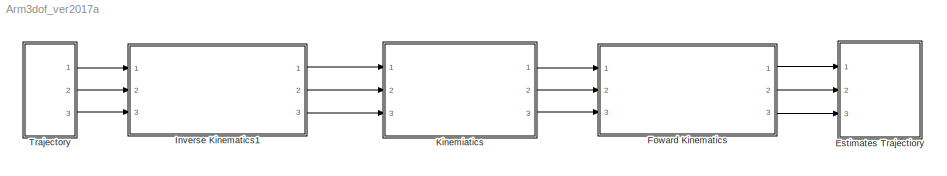
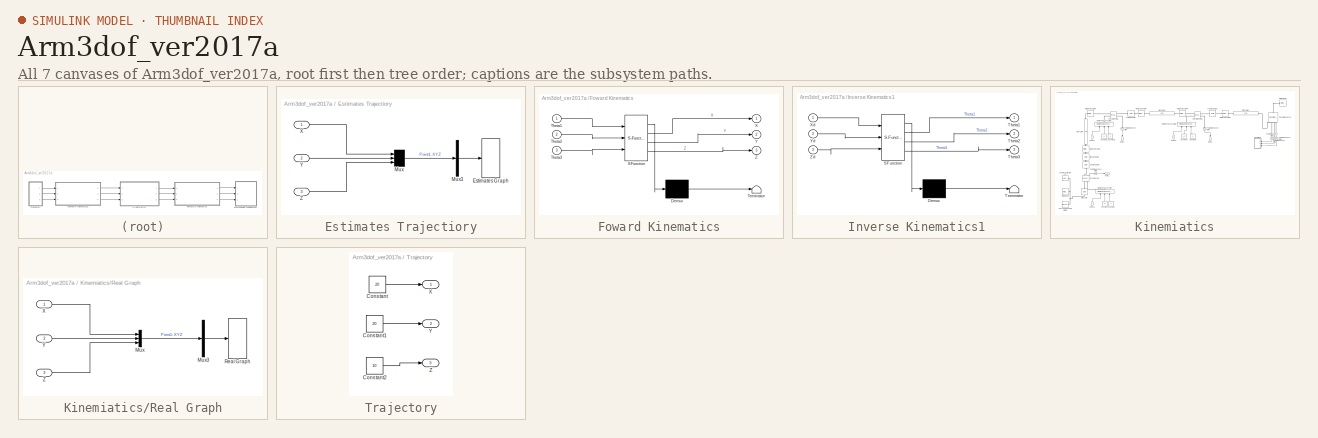
[diagram: thumbnail index - all 7 canvases of the model, root first then tree order]
MODEL Arm3dof_ver2017a
KIND model
BLOCK [SubSystem] Estimates Trajectiory
  Ports = [3]
  RequestExecContextInheritance = off
  SID = 162
BLOCK [S-Function] Estimates Trajectiory/Estimates Graph
  CopyFcn = if exist('sfun3d','file'), sfun3d([],[],[],'CopyBlock'); end
  DeleteFcn = if exist('sfun3d','file'), sfun3d([],[],[],'DeleteBlock'); end
  EnableBusSupport = off
  FunctionName = sfun3d
  LoadFcn = if exist('sfun3d','file'), sfun3d([],[],[],'LoadBlock'); end
  NameChangeFcn = if exist('sfun3d','file'), sfun3d([],[],[],'NameChange'); end
  Parameters = ax,T,np,cp,gd,ls,mk,mx,hd,tb
  Ports = [1]
  SFcnIsStateOwnerBlock = off
  SFunctionDeploymentMode = off
  SID = 166
BLOCK [Mux] Estimates Trajectiory/Mux
  DisplayOption = bar
  Inputs = 3
  Ports = [3, 1]
  SID = 167
BLOCK [Mux] Estimates Trajectiory/Mux3
  DisplayOption = bar
  Inputs = 1
  Ports = [1, 1]
  SID = 168
BLOCK [Inport] Estimates Trajectiory/X
  SID = 163
BLOCK [Inport] Estimates Trajectiory/Y
  Port = 2
  SID = 164
BLOCK [Inport] Estimates Trajectiory/Z
  Port = 3
  SID = 165
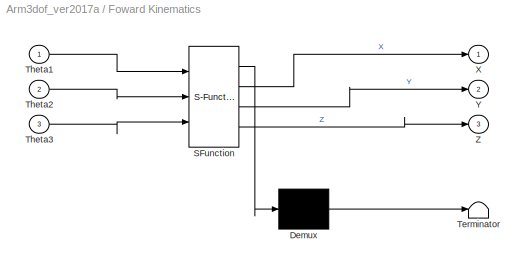
BLOCK [SubSystem] Foward Kinematics
  ErrorFcn = Stateflow.Translate.translate
  PermitHierarchicalResolution = ExplicitOnly
  Ports = [3, 3]
  RequestExecContextInheritance = off
  SFBlockType = MATLAB Function
  SID = 133
  TreatAsAtomicUnit = on
BLOCK [Demux] Foward Kinematics/ Demux 
  Outputs = 1
  Ports = [1, 1]
  SID = 133::20
BLOCK [S-Function] Foward Kinematics/ SFunction 
  EnableBusSupport = on
  FunctionName = sf_sfun
  PortCounts = [3 4]
  Ports = [3, 4]
  SFcnIsStateOwnerBlock = off
  SFunctionDeploymentMode = off
  SID = 133::19
  Tag = Stateflow S-Function Arm3dof_ver2017a 2
BLOCK [Terminator] Foward Kinematics/ Terminator 
  SID = 133::21
BLOCK [Inport] Foward Kinematics/Theta1
  SID = 133::1
BLOCK [Inport] Foward Kinematics/Theta2
  Port = 2
  SID = 133::22
BLOCK [Inport] Foward Kinematics/Theta3
  Port = 3
  SID = 133::24
BLOCK [Outport] Foward Kinematics/X
  SID = 133::23
BLOCK [Outport] Foward Kinematics/Y
  Port = 2
  SID = 133::5
BLOCK [Outport] Foward Kinematics/Z
  Port = 3
  SID = 133::25
BLOCK [SubSystem] Inverse Kinematics1
  ErrorFcn = Stateflow.Translate.translate
  PermitHierarchicalResolution = ExplicitOnly
  Ports = [3, 3]
  RequestExecContextInheritance = off
  SFBlockType = MATLAB Function
  SID = 134
  TreatAsAtomicUnit = on
BLOCK [Demux] Inverse Kinematics1/ Demux 
  Outputs = 1
  Ports = [1, 1]
  SID = 134::20
BLOCK [S-Function] Inverse Kinematics1/ SFunction 
  EnableBusSupport = on
  FunctionName = sf_sfun
  PortCounts = [3 4]
  Ports = [3, 4]
  SFcnIsStateOwnerBlock = off
  SFunctionDeploymentMode = off
  SID = 134::19
  Tag = Stateflow S-Function Arm3dof_ver2017a 1
BLOCK [Terminator] Inverse Kinematics1/ Terminator 
  SID = 134::21
BLOCK [Outport] Inverse Kinematics1/Theta1
  SID = 134::5
BLOCK [Outport] Inverse Kinematics1/Theta2
  Port = 2
  SID = 134::23
BLOCK [Outport] Inverse Kinematics1/Theta3
  Port = 3
  SID = 134::25
BLOCK [Inport] Inverse Kinematics1/Xd
  SID = 134::1
BLOCK [Inport] Inverse Kinematics1/Yd
  Port = 2
  SID = 134::22
BLOCK [Inport] Inverse Kinematics1/Zd
  Port = 3
  SID = 134::24
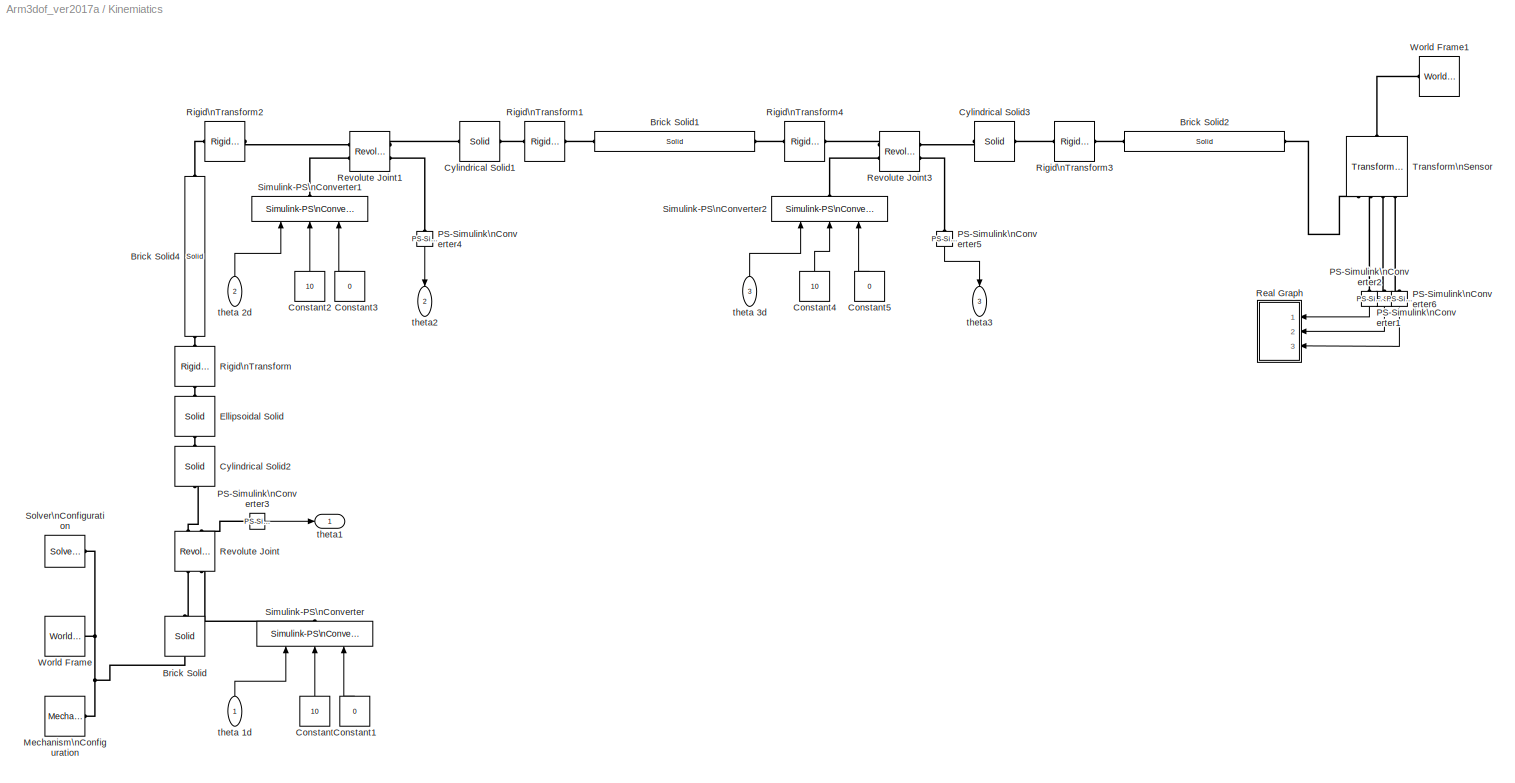
BLOCK [SubSystem] Kinemiatics
  Ports = [3, 3]
  RequestExecContextInheritance = off
  SID = 125
BLOCK [Reference] Kinemiatics/Brick Solid  REF=sm_lib/Body Elements/Solid
  BasedOnType = Density
  BrickDimensionUnits = cm
  BrickDimensions = [20 20 5]
  BrickDimensions_conf = compiletime
  CenterOfMass = [0 0 0]
  CenterOfMassUnits = m
  CenterOfMass_conf = compiletime
  Density = 1000
  DensityUnits = kg/m^3
  Density_conf = compiletime
  DoExposeReferenceFrame = on
  ExportEntireGeometry = off
  GraphicAmbientColor = [0.15 0.15 0.15 1.0]
  GraphicAmbientColor_conf = compiletime
  GraphicDiffuseColor = [0.2 0.0 0.2]
  GraphicDiffuseColor_conf = compiletime
  GraphicEmissiveColor = [0.0 0.0 0.0 1.0]
  GraphicEmissiveColor_conf = compiletime
  GraphicOpacity = 1.0
  GraphicOpacity_conf = compiletime
  GraphicShininess = 75
  GraphicShininess_conf = compiletime
  GraphicSpecularColor = [0.5 0.5 0.5 1.0]
  GraphicSpecularColor_conf = compiletime
  GraphicType = FromGeometry
  GraphicVisPropType = SimpleVisualProperties
  InertiaType = CalculateFromGeometry
  LogSimulationData = off
  MarkerShape = Sphere
  MarkerSize = 10
  MarkerSize_conf = compiletime
  Mass = 1
  MassUnits = kg
  Mass_conf = compiletime
  MomentsOfInertia = [1 1 1]
  MomentsOfInertiaUnits = kg*m^2
  MomentsOfInertia_conf = compiletime
  Ports = [0, 0, 0, 0, 0, 1, 1]
  ProductsOfInertia = [0 0 0]
  ProductsOfInertiaUnits = kg*m^2
  ProductsOfInertia_conf = compiletime
  SID = 44
  SerializedFrames = <Frames><Frame><Id>Frame1</Id><Value><Name>F</Name><Origin><Source>GeometricFeature</Source><FeatureName>+z surface</FeatureName></Origin><PrimaryAxis><DefinedDirection>+Z</DefinedDirection><Source>ReferenceFrame</Source><SourceDirection>+Z</SourceDirection><FeatureName></FeatureName></PrimaryAxis><SecondaryAxis><DefinedDirection>+X</DefinedDirection><Source>ReferenceFrame</Source><SourceDirection...<+89ch>
  SourceBlock = sm_lib/Body Elements/Solid
  SourceProductBaseCode = MS
  SourceType = Brick Solid
BLOCK [Reference] Kinemiatics/Brick Solid1  REF=sm_lib/Body Elements/Solid
  BasedOnType = Density
  BrickDimensionUnits = cm
  BrickDimensions = [3 1 15]
  BrickDimensions_conf = compiletime
  CenterOfMass = [0 0 0]
  CenterOfMassUnits = m
  CenterOfMass_conf = compiletime
  Density = 1000
  DensityUnits = kg/m^3
  Density_conf = compiletime
  DoExposeReferenceFrame = off
  ExportEntireGeometry = off
  GraphicAmbientColor = [0.15 0.15 0.15 1.0]
  GraphicAmbientColor_conf = compiletime
  GraphicDiffuseColor = [0.8 0.2 1.0]
  GraphicDiffuseColor_conf = compiletime
  GraphicEmissiveColor = [0.0 0.0 0.0 1.0]
  GraphicEmissiveColor_conf = compiletime
  GraphicOpacity = 1.0
  GraphicOpacity_conf = compiletime
  GraphicShininess = 75
  GraphicShininess_conf = compiletime
  GraphicSpecularColor = [0.5 0.5 0.5 1.0]
  GraphicSpecularColor_conf = compiletime
  GraphicType = FromGeometry
  GraphicVisPropType = SimpleVisualProperties
  InertiaType = CalculateFromGeometry
  LogSimulationData = off
  MarkerShape = Sphere
  MarkerSize = 10
  MarkerSize_conf = compiletime
  Mass = 1
  MassUnits = kg
  Mass_conf = compiletime
  MomentsOfInertia = [1 1 1]
  MomentsOfInertiaUnits = kg*m^2
  MomentsOfInertia_conf = compiletime
  Ports = [0, 0, 0, 0, 0, 1, 1]
  ProductsOfInertia = [0 0 0]
  ProductsOfInertiaUnits = kg*m^2
  ProductsOfInertia_conf = compiletime
  SID = 87
  SerializedFrames = <Frames><Frame><Id>Frame1</Id><Value><Name>Bot</Name><Origin><Source>GeometricFeature</Source><FeatureName>-z surface</FeatureName></Origin><PrimaryAxis><DefinedDirection>+Z</DefinedDirection><Source>ReferenceFrame</Source><SourceDirection>+Z</SourceDirection><FeatureName></FeatureName></PrimaryAxis><SecondaryAxis><DefinedDirection>+X</DefinedDirection><Source>ReferenceFrame</Source><SourceDirecti...<+565ch>  <repeated x3 — deduplicated; at blocks: Brick Solid1, Brick Solid2, Brick Solid4>
  SourceBlock = sm_lib/Body Elements/Solid
  SourceProductBaseCode = MS
  SourceType = Brick Solid
BLOCK [Reference] Kinemiatics/Brick Solid2  REF=sm_lib/Body Elements/Solid
  BasedOnType = Density
  BrickDimensionUnits = cm
  BrickDimensions = [3 1 14.5]
  BrickDimensions_conf = compiletime
  CenterOfMass = [0 0 0]
  CenterOfMassUnits = m
  CenterOfMass_conf = compiletime
  Density = 1000
  DensityUnits = kg/m^3
  Density_conf = compiletime
  DoExposeReferenceFrame = off
  ExportEntireGeometry = off
  GraphicAmbientColor = [0.15 0.15 0.15 1.0]
  GraphicAmbientColor_conf = compiletime
  GraphicDiffuseColor = [0.0 0.0 0.8]
  GraphicDiffuseColor_conf = compiletime
  GraphicEmissiveColor = [0.0 0.0 0.0 1.0]
  GraphicEmissiveColor_conf = compiletime
  GraphicOpacity = 1.0
  GraphicOpacity_conf = compiletime
  GraphicShininess = 75
  GraphicShininess_conf = compiletime
  GraphicSpecularColor = [0.5 0.5 0.5 1.0]
  GraphicSpecularColor_conf = compiletime
  GraphicType = FromGeometry
  GraphicVisPropType = SimpleVisualProperties
  InertiaType = CalculateFromGeometry
  LogSimulationData = off
  MarkerShape = Sphere
  MarkerSize = 10
  MarkerSize_conf = compiletime
  Mass = 1
  MassUnits = kg
  Mass_conf = compiletime
  MomentsOfInertia = [1 1 1]
  MomentsOfInertiaUnits = kg*m^2
  MomentsOfInertia_conf = compiletime
  Ports = [0, 0, 0, 0, 0, 1, 1]
  ProductsOfInertia = [0 0 0]
  ProductsOfInertiaUnits = kg*m^2
  ProductsOfInertia_conf = compiletime
  SID = 95
  SourceBlock = sm_lib/Body Elements/Solid
  SourceProductBaseCode = MS
  SourceType = Brick Solid
BLOCK [Reference] Kinemiatics/Brick Solid4  REF=sm_lib/Body Elements/Solid
  BasedOnType = Density
  BrickDimensionUnits = cm
  BrickDimensions = [3 1 15.96997]
  BrickDimensions_conf = compiletime
  CenterOfMass = [0 0 0]
  CenterOfMassUnits = m
  CenterOfMass_conf = compiletime
  Density = 1000
  DensityUnits = kg/m^3
  Density_conf = compiletime
  DoExposeReferenceFrame = off
  ExportEntireGeometry = off
  GraphicAmbientColor = [0.15 0.15 0.15 1.0]
  GraphicAmbientColor_conf = compiletime
  GraphicDiffuseColor = [0.0 1.0 1.0]
  GraphicDiffuseColor_conf = compiletime
  GraphicEmissiveColor = [0.0 0.0 0.0 1.0]
  GraphicEmissiveColor_conf = compiletime
  GraphicOpacity = 1.0
  GraphicOpacity_conf = compiletime
  GraphicShininess = 75
  GraphicShininess_conf = compiletime
  GraphicSpecularColor = [0.5 0.5 0.5 1.0]
  GraphicSpecularColor_conf = compiletime
  GraphicType = FromGeometry
  GraphicVisPropType = SimpleVisualProperties
  InertiaType = CalculateFromGeometry
  LogSimulationData = off
  MarkerShape = Sphere
  MarkerSize = 10
  MarkerSize_conf = compiletime
  Mass = 1
  MassUnits = kg
  Mass_conf = compiletime
  MomentsOfInertia = [1 1 1]
  MomentsOfInertiaUnits = kg*m^2
  MomentsOfInertia_conf = compiletime
  Ports = [0, 0, 0, 0, 0, 1, 1]
  ProductsOfInertia = [0 0 0]
  ProductsOfInertiaUnits = kg*m^2
  ProductsOfInertia_conf = compiletime
  SID = 61
  SourceBlock = sm_lib/Body Elements/Solid
  SourceProductBaseCode = MS
  SourceType = Brick Solid
BLOCK [Constant] Kinemiatics/Constant
  SID = 108
  Value = 10
BLOCK [Constant] Kinemiatics/Constant1
  SID = 109
  Value = 0
BLOCK [Constant] Kinemiatics/Constant2
  SID = 114
  Value = 10
BLOCK [Constant] Kinemiatics/Constant3
  SID = 115
  Value = 0
BLOCK [Constant] Kinemiatics/Constant4
  SID = 120
  Value = 10
BLOCK [Constant] Kinemiatics/Constant5
  SID = 121
  Value = 0
BLOCK [Reference] Kinemiatics/Cylindrical Solid1  REF=sm_lib/Body Elements/Solid
  BasedOnType = Density
  CenterOfMass = [0 0 0]
  CenterOfMassUnits = m
  CenterOfMass_conf = compiletime
  CylinderLength = 1
  CylinderLengthUnits = cm
  CylinderLength_conf = compiletime
  CylinderRadius = 1
  CylinderRadiusUnits = cm
  CylinderRadius_conf = compiletime
  Density = 1000
  DensityUnits = kg/m^3
  Density_conf = compiletime
  DoExposeReferenceFrame = off
  ExportEntireGeometry = off
  GraphicAmbientColor = [0.15 0.15 0.15 1.0]
  GraphicAmbientColor_conf = compiletime
  GraphicDiffuseColor = [0.5 0.5 0.5]
  GraphicDiffuseColor_conf = compiletime
  GraphicEmissiveColor = [0.0 0.0 0.0 1.0]
  GraphicEmissiveColor_conf = compiletime
  GraphicOpacity = 1.0
  GraphicOpacity_conf = compiletime
  GraphicShininess = 75
  GraphicShininess_conf = compiletime
  GraphicSpecularColor = [0.5 0.5 0.5 1.0]
  GraphicSpecularColor_conf = compiletime
  GraphicType = FromGeometry
  GraphicVisPropType = SimpleVisualProperties
  InertiaType = CalculateFromGeometry
  LogSimulationData = off
  MarkerShape = Sphere
  MarkerSize = 10
  MarkerSize_conf = compiletime
  Mass = 1
  MassUnits = kg
  Mass_conf = compiletime
  MomentsOfInertia = [1 1 1]
  MomentsOfInertiaUnits = kg*m^2
  MomentsOfInertia_conf = compiletime
  Ports = [0, 0, 0, 0, 0, 1, 1]
  ProductsOfInertia = [0 0 0]
  ProductsOfInertiaUnits = kg*m^2
  ProductsOfInertia_conf = compiletime
  SID = 90
  SerializedFrames = <Frames><Frame><Id>Frame1</Id><Value><Name>Front</Name><Origin><Source>GeometricFeature</Source><FeatureName>bottom surface</FeatureName></Origin><PrimaryAxis><DefinedDirection>+Z</DefinedDirection><Source>ReferenceFrame</Source><SourceDirection>+Z</SourceDirection><FeatureName></FeatureName></PrimaryAxis><SecondaryAxis><DefinedDirection>+X</DefinedDirection><Source>ReferenceFrame</Source><SourceD...<+573ch>
  SourceBlock = sm_lib/Body Elements/Solid
  SourceProductBaseCode = MS
  SourceType = Cylindrical Solid
BLOCK [Reference] Kinemiatics/Cylindrical Solid2  REF=sm_lib/Body Elements/Solid
  BasedOnType = Density
  CenterOfMass = [0 0 0]
  CenterOfMassUnits = m
  CenterOfMass_conf = compiletime
  CylinderLength = 0.5
  CylinderLengthUnits = cm
  CylinderLength_conf = compiletime
  CylinderRadius = 1.5
  CylinderRadiusUnits = cm
  CylinderRadius_conf = compiletime
  Density = 1000
  DensityUnits = kg/m^3
  Density_conf = compiletime
  DoExposeReferenceFrame = off
  ExportEntireGeometry = off
  GraphicAmbientColor = [0.15 0.15 0.15 1.0]
  GraphicAmbientColor_conf = compiletime
  GraphicDiffuseColor = [0.5 0.5 0.5]
  GraphicDiffuseColor_conf = compiletime
  GraphicEmissiveColor = [0.0 0.0 0.0 1.0]
  GraphicEmissiveColor_conf = compiletime
  GraphicOpacity = 1.0
  GraphicOpacity_conf = compiletime
  GraphicShininess = 75
  GraphicShininess_conf = compiletime
  GraphicSpecularColor = [0.5 0.5 0.5 1.0]
  GraphicSpecularColor_conf = compiletime
  GraphicType = FromGeometry
  GraphicVisPropType = SimpleVisualProperties
  InertiaType = CalculateFromGeometry
  LogSimulationData = off
  MarkerShape = Sphere
  MarkerSize = 10
  MarkerSize_conf = compiletime
  Mass = 1
  MassUnits = kg
  Mass_conf = compiletime
  MomentsOfInertia = [1 1 1]
  MomentsOfInertiaUnits = kg*m^2
  MomentsOfInertia_conf = compiletime
  Ports = [0, 0, 0, 0, 0, 1, 1]
  ProductsOfInertia = [0 0 0]
  ProductsOfInertiaUnits = kg*m^2
  ProductsOfInertia_conf = compiletime
  SID = 63
  SerializedFrames = <Frames><Frame><Id>Frame1</Id><Value><Name>Bot</Name><Origin><Source>GeometricFeature</Source><FeatureName>bottom surface</FeatureName></Origin><PrimaryAxis><DefinedDirection>+Z</DefinedDirection><Source>ReferenceFrame</Source><SourceDirection>+Z</SourceDirection><FeatureName></FeatureName></PrimaryAxis><SecondaryAxis><DefinedDirection>+X</DefinedDirection><Source>ReferenceFrame</Source><SourceDir...<+570ch>
  SourceBlock = sm_lib/Body Elements/Solid
  SourceProductBaseCode = MS
  SourceType = Cylindrical Solid
BLOCK [Reference] Kinemiatics/Cylindrical Solid3  REF=sm_lib/Body Elements/Solid
  BasedOnType = Density
  CenterOfMass = [0 0 0]
  CenterOfMassUnits = m
  CenterOfMass_conf = compiletime
  CylinderLength = 1
  CylinderLengthUnits = cm
  CylinderLength_conf = compiletime
  CylinderRadius = 1
  CylinderRadiusUnits = cm
  CylinderRadius_conf = compiletime
  Density = 1000
  DensityUnits = kg/m^3
  Density_conf = compiletime
  DoExposeReferenceFrame = off
  ExportEntireGeometry = off
  GraphicAmbientColor = [0.15 0.15 0.15 1.0]
  GraphicAmbientColor_conf = compiletime
  GraphicDiffuseColor = [0.5 0.5 0.5]
  GraphicDiffuseColor_conf = compiletime
  GraphicEmissiveColor = [0.0 0.0 0.0 1.0]
  GraphicEmissiveColor_conf = compiletime
  GraphicOpacity = 1.0
  GraphicOpacity_conf = compiletime
  GraphicShininess = 75
  GraphicShininess_conf = compiletime
  GraphicSpecularColor = [0.5 0.5 0.5 1.0]
  GraphicSpecularColor_conf = compiletime
  GraphicType = FromGeometry
  GraphicVisPropType = SimpleVisualProperties
  InertiaType = CalculateFromGeometry
  LogSimulationData = off
  MarkerShape = Sphere
  MarkerSize = 10
  MarkerSize_conf = compiletime
  Mass = 1
  MassUnits = kg
  Mass_conf = compiletime
  MomentsOfInertia = [1 1 1]
  MomentsOfInertiaUnits = kg*m^2
  MomentsOfInertia_conf = compiletime
  Ports = [0, 0, 0, 0, 0, 1, 1]
  ProductsOfInertia = [0 0 0]
  ProductsOfInertiaUnits = kg*m^2
  ProductsOfInertia_conf = compiletime
  SID = 96
  SerializedFrames = <Frames><Frame><Id>Frame1</Id><Value><Name>Front</Name><Origin><Source>GeometricFeature</Source><FeatureName>bottom surface</FeatureName></Origin><PrimaryAxis><DefinedDirection>+Z</DefinedDirection><Source>ReferenceFrame</Source><SourceDirection>+Z</SourceDirection><FeatureName></FeatureName></PrimaryAxis><SecondaryAxis><DefinedDirection>+X</DefinedDirection><Source>ReferenceFrame</Source><SourceD...<+573ch>
  SourceBlock = sm_lib/Body Elements/Solid
  SourceProductBaseCode = MS
  SourceType = Cylindrical Solid
BLOCK [Reference] Kinemiatics/Ellipsoidal Solid  REF=sm_lib/Body Elements/Solid
  BasedOnType = Density
  CenterOfMass = [0 0 0]
  CenterOfMassUnits = m
  CenterOfMass_conf = compiletime
  Density = 1000
  DensityUnits = kg/m^3
  Density_conf = compiletime
  DoExposeReferenceFrame = on
  EllipsoidRadii = [1 1 1]
  EllipsoidRadiiUnits = cm
  EllipsoidRadii_conf = compiletime
  ExportEntireGeometry = off
  GraphicAmbientColor = [0.15 0.15 0.15 1.0]
  GraphicAmbientColor_conf = compiletime
  GraphicDiffuseColor = [0.5 0.5 0.5]
  GraphicDiffuseColor_conf = compiletime
  GraphicEmissiveColor = [0.0 0.0 0.0 1.0]
  GraphicEmissiveColor_conf = compiletime
  GraphicOpacity = 1.0
  GraphicOpacity_conf = compiletime
  GraphicShininess = 75
  GraphicShininess_conf = compiletime
  GraphicSpecularColor = [0.5 0.5 0.5 1.0]
  GraphicSpecularColor_conf = compiletime
  GraphicType = FromGeometry
  GraphicVisPropType = SimpleVisualProperties
  InertiaType = CalculateFromGeometry
  LogSimulationData = off
  MarkerShape = Sphere
  MarkerSize = 10
  MarkerSize_conf = compiletime
  Mass = 1
  MassUnits = kg
  Mass_conf = compiletime
  MomentsOfInertia = [1 1 1]
  MomentsOfInertiaUnits = kg*m^2
  MomentsOfInertia_conf = compiletime
  Ports = [0, 0, 0, 0, 0, 1, 1]
  ProductsOfInertia = [0 0 0]
  ProductsOfInertiaUnits = kg*m^2
  ProductsOfInertia_conf = compiletime
  SID = 79
  SerializedFrames = <Frames><Frame><Id>Frame1</Id><Value><Name>Bot</Name><Origin><Source>GeometricFeature</Source><FeatureName>-z point</FeatureName></Origin><PrimaryAxis><DefinedDirection>+Z</DefinedDirection><Source>ReferenceFrame</Source><SourceDirection>+Z</SourceDirection><FeatureName></FeatureName></PrimaryAxis><SecondaryAxis><DefinedDirection>+X</DefinedDirection><Source>ReferenceFrame</Source><SourceDirection...<+89ch>
  SourceBlock = sm_lib/Body Elements/Solid
  SourceProductBaseCode = MS
  SourceType = Ellipsoidal Solid
BLOCK [Reference] Kinemiatics/Mechanism\nConfiguration  REF=sm_lib/Utilities/Mechanism\nConfiguration
  GravityUnits = m/s^2
  GravityVector = [0  0 -9.80665]
  GravityVectorUnits = m/s^2
  GravityVector_conf = compiletime
  JointModeTransitionNonlinearIterations = 2
  LinearizationDelta = 0.001
  LogSimulationData = off
  Ports = [0, 0, 0, 0, 0, 0, 1]
  SID = 50
  SourceBlock = sm_lib/Utilities/Mechanism\nConfiguration
  SourceProductBaseCode = MS
  SourceType = Mechanism\nConfiguration
  UniformGravity = Constant
BLOCK [Reference] Kinemiatics/PS-Simulink\nConverter1  REF=nesl_utility/PS-Simulink\nConverter
  AffineConversion = off
  Frequencies = []
  LeftPortType = input
  PhysicalDomain = network_engine_domain
  Ports = [0, 1, 0, 0, 0, 1]
  PseudoPeriodic = off
  RTWMemSecDataConstants = Inherit from model
  RTWMemSecDataInternal = Inherit from model
  RTWMemSecDataParameters = Inherit from model
  RTWMemSecFuncExecute = Inherit from model
  RTWMemSecFuncInitTerm = Inherit from model
  RightPortType = output
  SID = 102
  SourceBlock = nesl_utility/PS-Simulink\nConverter
  SourceProductBaseCode = PW,SS
  SourceType = PS-Simulink\nConverter
  SubClassName = ps_output
  Unit = inherit
BLOCK [Reference] Kinemiatics/PS-Simulink\nConverter2  REF=nesl_utility/PS-Simulink\nConverter
  AffineConversion = off
  Frequencies = []
  LeftPortType = input
  PhysicalDomain = network_engine_domain
  Ports = [0, 1, 0, 0, 0, 1]
  PseudoPeriodic = off
  RTWMemSecDataConstants = Inherit from model
  RTWMemSecDataInternal = Inherit from model
  RTWMemSecDataParameters = Inherit from model
  RTWMemSecFuncExecute = Inherit from model
  RTWMemSecFuncInitTerm = Inherit from model
  RightPortType = output
  SID = 106
  SourceBlock = nesl_utility/PS-Simulink\nConverter
  SourceProductBaseCode = PW,SS
  SourceType = PS-Simulink\nConverter
  SubClassName = ps_output
  Unit = inherit
BLOCK [Reference] Kinemiatics/PS-Simulink\nConverter3  REF=nesl_utility/PS-Simulink\nConverter
  AffineConversion = off
  Frequencies = []
  LeftPortType = input
  PhysicalDomain = network_engine_domain
  Ports = [0, 1, 0, 0, 0, 1]
  PseudoPeriodic = off
  RTWMemSecDataConstants = Inherit from model
  RTWMemSecDataInternal = Inherit from model
  RTWMemSecDataParameters = Inherit from model
  RTWMemSecFuncExecute = Inherit from model
  RTWMemSecFuncInitTerm = Inherit from model
  RightPortType = output
  SID = 110
  SourceBlock = nesl_utility/PS-Simulink\nConverter
  SourceProductBaseCode = PW,SS
  SourceType = PS-Simulink\nConverter
  SubClassName = ps_output
  Unit = inherit
BLOCK [Reference] Kinemiatics/PS-Simulink\nConverter4  REF=nesl_utility/PS-Simulink\nConverter
  AffineConversion = off
  Frequencies = []
  LeftPortType = input
  PhysicalDomain = network_engine_domain
  Ports = [0, 1, 0, 0, 0, 1]
  PseudoPeriodic = off
  RTWMemSecDataConstants = Inherit from model
  RTWMemSecDataInternal = Inherit from model
  RTWMemSecDataParameters = Inherit from model
  RTWMemSecFuncExecute = Inherit from model
  RTWMemSecFuncInitTerm = Inherit from model
  RightPortType = output
  SID = 116
  SourceBlock = nesl_utility/PS-Simulink\nConverter
  SourceProductBaseCode = PW,SS
  SourceType = PS-Simulink\nConverter
  SubClassName = ps_output
  Unit = inherit
BLOCK [Reference] Kinemiatics/PS-Simulink\nConverter5  REF=nesl_utility/PS-Simulink\nConverter
  AffineConversion = off
  Frequencies = []
  LeftPortType = input
  PhysicalDomain = network_engine_domain
  Ports = [0, 1, 0, 0, 0, 1]
  PseudoPeriodic = off
  RTWMemSecDataConstants = Inherit from model
  RTWMemSecDataInternal = Inherit from model
  RTWMemSecDataParameters = Inherit from model
  RTWMemSecFuncExecute = Inherit from model
  RTWMemSecFuncInitTerm = Inherit from model
  RightPortType = output
  SID = 122
  SourceBlock = nesl_utility/PS-Simulink\nConverter
  SourceProductBaseCode = PW,SS
  SourceType = PS-Simulink\nConverter
  SubClassName = ps_output
  Unit = inherit
BLOCK [Reference] Kinemiatics/PS-Simulink\nConverter6  REF=nesl_utility/PS-Simulink\nConverter
  AffineConversion = off
  Frequencies = []
  LeftPortType = input
  PhysicalDomain = network_engine_domain
  Ports = [0, 1, 0, 0, 0, 1]
  PseudoPeriodic = off
  RTWMemSecDataConstants = Inherit from model
  RTWMemSecDataInternal = Inherit from model
  RTWMemSecDataParameters = Inherit from model
  RTWMemSecFuncExecute = Inherit from model
  RTWMemSecFuncInitTerm = Inherit from model
  RightPortType = output
  SID = 161
  SourceBlock = nesl_utility/PS-Simulink\nConverter
  SourceProductBaseCode = PW,SS
  SourceType = PS-Simulink\nConverter
  SubClassName = ps_output
  Unit = inherit
BLOCK [SubSystem] Kinemiatics/Real Graph
  Ports = [3]
  RequestExecContextInheritance = off
  SID = 157
BLOCK [Mux] Kinemiatics/Real Graph/Mux
  DisplayOption = bar
  Inputs = 3
  Ports = [3, 1]
  SID = 145
BLOCK [Mux] Kinemiatics/Real Graph/Mux3
  DisplayOption = bar
  Inputs = 1
  Ports = [1, 1]
  SID = 147
BLOCK [S-Function] Kinemiatics/Real Graph/Real Graph
  CopyFcn = if exist('sfun3d','file'), sfun3d([],[],[],'CopyBlock'); end
  DeleteFcn = if exist('sfun3d','file'), sfun3d([],[],[],'DeleteBlock'); end
  EnableBusSupport = off
  FunctionName = sfun3d
  LoadFcn = if exist('sfun3d','file'), sfun3d([],[],[],'LoadBlock'); end
  NameChangeFcn = if exist('sfun3d','file'), sfun3d([],[],[],'NameChange'); end
  Parameters = ax,T,np,cp,gd,ls,mk,mx,hd,tb
  Ports = [1]
  SFcnIsStateOwnerBlock = off
  SFunctionDeploymentMode = off
  SID = 144
BLOCK [Inport] Kinemiatics/Real Graph/X
  SID = 158
BLOCK [Inport] Kinemiatics/Real Graph/Y
  Port = 2
  SID = 159
BLOCK [Inport] Kinemiatics/Real Graph/Z
  Port = 3
  SID = 160
BLOCK [Reference] Kinemiatics/Revolute Joint  REF=sm_lib/Joints/Revolute Joint
  CompositeWrenchDir = FollowerOnBase
  CompositeWrenchFrame = BaseFrame
  DampingCoefficient = 0
  DampingCoefficientUnits = N*m/(deg/s)
  DampingCoefficient_conf = compiletime
  EquilibriumPosition = 0
  EquilibriumPositionUnits = deg
  EquilibriumPosition_conf = compiletime
  JointMode = Normal
  LogSimulationData = off
  LowerLimitBound = -90
  LowerLimitBoundUnits = deg
  LowerLimitBound_conf = compiletime
  LowerLimitDamping = 10
  LowerLimitDampingUnits = N*m/(deg/s)
  LowerLimitDamping_conf = compiletime
  LowerLimitSpecify = off
  LowerLimitStiffness = 1e4
  LowerLimitStiffnessUnits = N*m/deg
  LowerLimitStiffness_conf = compiletime
  LowerLimitTransitionRegionWidth = 0.1
  LowerLimitTransitionRegionWidthUnits = deg
  LowerLimitTransitionRegionWidth_conf = compiletime
  MotionActuationMode = InputMotion
  Ports = [0, 0, 0, 0, 0, 2, 2]
  PositionTargetPriority = High
  PositionTargetSpecify = off
  PositionTargetValue = 0
  PositionTargetValueUnits = deg
  PositionTargetValue_conf = compiletime
  SID = 86
  SenseAcceleration = off
  SenseConstraintForce = off
  SenseConstraintForceX = off
  SenseConstraintForceY = off
  SenseConstraintForceZ = off
  SenseConstraintTorque = off
  SenseConstraintTorqueX = off
  SenseConstraintTorqueY = off
  SenseConstraintTorqueZ = off
  SenseLowerLimitTorqueForce = off
  SensePosition = on
  SenseTorqueForce = off
  SenseTotalForce = off
  SenseTotalForceX = off
  SenseTotalForceY = off
  SenseTotalForceZ = off
  SenseTotalTorque = off
  SenseTotalTorqueX = off
  SenseTotalTorqueY = off
  SenseTotalTorqueZ = off
  SenseUpperLimitTorqueForce = off
  SenseVelocity = off
  SourceBlock = sm_lib/Joints/Revolute Joint
  SourceProductBaseCode = MS
  SourceType = Revolute Joint
  SpringStiffness = 0
  SpringStiffnessUnits = N*m/deg
  SpringStiffness_conf = compiletime
  TorqueActuationMode = ComputedTorque
  UpperLimitBound = 90
  UpperLimitBoundUnits = deg
  UpperLimitBound_conf = compiletime
  UpperLimitDamping = 10
  UpperLimitDampingUnits = N*m/(deg/s)
  UpperLimitDamping_conf = compiletime
  UpperLimitSpecify = off
  UpperLimitStiffness = 1e4
  UpperLimitStiffnessUnits = N*m/deg
  UpperLimitStiffness_conf = compiletime
  UpperLimitTransitionRegionWidth = 0.1
  UpperLimitTransitionRegionWidthUnits = deg
  UpperLimitTransitionRegionWidth_conf = compiletime
  VelocityTargetPriority = High
  VelocityTargetSpecify = off
  VelocityTargetValue = 0
  VelocityTargetValueUnits = deg/s
  VelocityTargetValue_conf = compiletime
BLOCK [Reference] Kinemiatics/Revolute Joint1  REF=sm_lib/Joints/Revolute Joint
  CompositeWrenchDir = FollowerOnBase
  CompositeWrenchFrame = BaseFrame
  DampingCoefficient = 0
  DampingCoefficientUnits = N*m/(deg/s)
  DampingCoefficient_conf = compiletime
  EquilibriumPosition = 0
  EquilibriumPositionUnits = deg
  EquilibriumPosition_conf = compiletime
  JointMode = Normal
  LogSimulationData = off
  LowerLimitBound = -90
  LowerLimitBoundUnits = deg
  LowerLimitBound_conf = compiletime
  LowerLimitDamping = 10
  LowerLimitDampingUnits = N*m/(deg/s)
  LowerLimitDamping_conf = compiletime
  LowerLimitSpecify = off
  LowerLimitStiffness = 1e4
  LowerLimitStiffnessUnits = N*m/deg
  LowerLimitStiffness_conf = compiletime
  LowerLimitTransitionRegionWidth = 0.1
  LowerLimitTransitionRegionWidthUnits = deg
  LowerLimitTransitionRegionWidth_conf = compiletime
  MotionActuationMode = InputMotion
  Ports = [0, 0, 0, 0, 0, 2, 2]
  PositionTargetPriority = High
  PositionTargetSpecify = off
  PositionTargetValue = 0
  PositionTargetValueUnits = deg
  PositionTargetValue_conf = compiletime
  SID = 99
  SenseAcceleration = off
  SenseConstraintForce = off
  SenseConstraintForceX = off
  SenseConstraintForceY = off
  SenseConstraintForceZ = off
  SenseConstraintTorque = off
  SenseConstraintTorqueX = off
  SenseConstraintTorqueY = off
  SenseConstraintTorqueZ = off
  SenseLowerLimitTorqueForce = off
  SensePosition = on
  SenseTorqueForce = off
  SenseTotalForce = off
  SenseTotalForceX = off
  SenseTotalForceY = off
  SenseTotalForceZ = off
  SenseTotalTorque = off
  SenseTotalTorqueX = off
  SenseTotalTorqueY = off
  SenseTotalTorqueZ = off
  SenseUpperLimitTorqueForce = off
  SenseVelocity = off
  SourceBlock = sm_lib/Joints/Revolute Joint
  SourceProductBaseCode = MS
  SourceType = Revolute Joint
  SpringStiffness = 0
  SpringStiffnessUnits = N*m/deg
  SpringStiffness_conf = compiletime
  TorqueActuationMode = ComputedTorque
  UpperLimitBound = 90
  UpperLimitBoundUnits = deg
  UpperLimitBound_conf = compiletime
  UpperLimitDamping = 10
  UpperLimitDampingUnits = N*m/(deg/s)
  UpperLimitDamping_conf = compiletime
  UpperLimitSpecify = off
  UpperLimitStiffness = 1e4
  UpperLimitStiffnessUnits = N*m/deg
  UpperLimitStiffness_conf = compiletime
  UpperLimitTransitionRegionWidth = 0.1
  UpperLimitTransitionRegionWidthUnits = deg
  UpperLimitTransitionRegionWidth_conf = compiletime
  VelocityTargetPriority = High
  VelocityTargetSpecify = off
  VelocityTargetValue = 0
  VelocityTargetValueUnits = deg/s
  VelocityTargetValue_conf = compiletime
BLOCK [Reference] Kinemiatics/Revolute Joint3  REF=sm_lib/Joints/Revolute Joint
  CompositeWrenchDir = FollowerOnBase
  CompositeWrenchFrame = BaseFrame
  DampingCoefficient = 0
  DampingCoefficientUnits = N*m/(deg/s)
  DampingCoefficient_conf = compiletime
  EquilibriumPosition = 0
  EquilibriumPositionUnits = deg
  EquilibriumPosition_conf = compiletime
  JointMode = Normal
  LogSimulationData = off
  LowerLimitBound = -90
  LowerLimitBoundUnits = deg
  LowerLimitBound_conf = compiletime
  LowerLimitDamping = 10
  LowerLimitDampingUnits = N*m/(deg/s)
  LowerLimitDamping_conf = compiletime
  LowerLimitSpecify = off
  LowerLimitStiffness = 1e4
  LowerLimitStiffnessUnits = N*m/deg
  LowerLimitStiffness_conf = compiletime
  LowerLimitTransitionRegionWidth = 0.1
  LowerLimitTransitionRegionWidthUnits = deg
  LowerLimitTransitionRegionWidth_conf = compiletime
  MotionActuationMode = InputMotion
  Ports = [0, 0, 0, 0, 0, 2, 2]
  PositionTargetPriority = High
  PositionTargetSpecify = off
  PositionTargetValue = 0
  PositionTargetValueUnits = deg
  PositionTargetValue_conf = compiletime
  SID = 100
  SenseAcceleration = off
  SenseConstraintForce = off
  SenseConstraintForceX = off
  SenseConstraintForceY = off
  SenseConstraintForceZ = off
  SenseConstraintTorque = off
  SenseConstraintTorqueX = off
  SenseConstraintTorqueY = off
  SenseConstraintTorqueZ = off
  SenseLowerLimitTorqueForce = off
  SensePosition = on
  SenseTorqueForce = off
  SenseTotalForce = off
  SenseTotalForceX = off
  SenseTotalForceY = off
  SenseTotalForceZ = off
  SenseTotalTorque = off
  SenseTotalTorqueX = off
  SenseTotalTorqueY = off
  SenseTotalTorqueZ = off
  SenseUpperLimitTorqueForce = off
  SenseVelocity = off
  SourceBlock = sm_lib/Joints/Revolute Joint
  SourceProductBaseCode = MS
  SourceType = Revolute Joint
  SpringStiffness = 0
  SpringStiffnessUnits = N*m/deg
  SpringStiffness_conf = compiletime
  TorqueActuationMode = ComputedTorque
  UpperLimitBound = 90
  UpperLimitBoundUnits = deg
  UpperLimitBound_conf = compiletime
  UpperLimitDamping = 10
  UpperLimitDampingUnits = N*m/(deg/s)
  UpperLimitDamping_conf = compiletime
  UpperLimitSpecify = off
  UpperLimitStiffness = 1e4
  UpperLimitStiffnessUnits = N*m/deg
  UpperLimitStiffness_conf = compiletime
  UpperLimitTransitionRegionWidth = 0.1
  UpperLimitTransitionRegionWidthUnits = deg
  UpperLimitTransitionRegionWidth_conf = compiletime
  VelocityTargetPriority = High
  VelocityTargetSpecify = off
  VelocityTargetValue = 0
  VelocityTargetValueUnits = deg/s
  VelocityTargetValue_conf = compiletime
BLOCK [Reference] Kinemiatics/Rigid\nTransform  REF=sm_lib/Frames and\nTransforms/Rigid\nTransform
  BaseAlignAxisA = +Y
  BaseAlignAxisB = +Z
  FollAlignAxisA = +X
  FollAlignAxisB = +Y
  LogSimulationData = off
  Ports = [0, 0, 0, 0, 0, 1, 1]
  RotationAngle = 0.3851575
  RotationAngleUnits = rad
  RotationAngle_conf = compiletime
  RotationArbitraryAxis = [0 0 1]
  RotationArbitraryAxis_conf = compiletime
  RotationMatrix = [1 0 0; 0 1 0; 0 0 1]
  RotationMatrix_conf = compiletime
  RotationMethod = StandardAxis
  RotationSequence = XYX
  RotationSequenceAngles = [0 0 0]
  RotationSequenceAnglesUnits = deg
  RotationSequenceAngles_conf = compiletime
  RotationSequenceAxes = FollowerAxes
  RotationStandardAxis = +Y
  SID = 81
  SourceBlock = sm_lib/Frames and\nTransforms/Rigid\nTransform
  SourceProductBaseCode = MS
  SourceType = Rigid\nTransform
  TranslationCartesianOffset = [0 0 0]
  TranslationCartesianOffset_conf = compiletime
  TranslationLengthUnit = m
  TranslationMethod = None
  TranslationROffset = 0
  TranslationROffsetUnits = m
  TranslationROffset_conf = compiletime
  TranslationStandardAxis = +Z
  TranslationStandardOffset = 0
  TranslationStandardOffset_conf = compiletime
  TranslationThetaOffset = 0
  TranslationThetaOffsetUnits = deg
  TranslationThetaOffset_conf = compiletime
  TranslationZOffset = 0
  TranslationZOffsetUnits = m
  TranslationZOffset_conf = compiletime
BLOCK [Reference] Kinemiatics/Rigid\nTransform1  REF=sm_lib/Frames and\nTransforms/Rigid\nTransform
  BaseAlignAxisA = +Y
  BaseAlignAxisB = +Z
  FollAlignAxisA = +X
  FollAlignAxisB = +Y
  LogSimulationData = off
  Ports = [0, 0, 0, 0, 0, 1, 1]
  RotationAngle = -90
  RotationAngleUnits = deg
  RotationAngle_conf = compiletime
  RotationArbitraryAxis = [0 0 1]
  RotationArbitraryAxis_conf = compiletime
  RotationMatrix = [1 0 0; 0 1 0; 0 0 1]
  RotationMatrix_conf = compiletime
  RotationMethod = StandardAxis
  RotationSequence = XYX
  RotationSequenceAngles = [0 0 0]
  RotationSequenceAnglesUnits = deg
  RotationSequenceAngles_conf = compiletime
  RotationSequenceAxes = FollowerAxes
  RotationStandardAxis = +X
  SID = 89
  SourceBlock = sm_lib/Frames and\nTransforms/Rigid\nTransform
  SourceProductBaseCode = MS
  SourceType = Rigid\nTransform
  TranslationCartesianOffset = [0 0 0]
  TranslationCartesianOffset_conf = compiletime
  TranslationLengthUnit = m
  TranslationMethod = None
  TranslationROffset = 0
  TranslationROffsetUnits = m
  TranslationROffset_conf = compiletime
  TranslationStandardAxis = +Z
  TranslationStandardOffset = 0
  TranslationStandardOffset_conf = compiletime
  TranslationThetaOffset = 0
  TranslationThetaOffsetUnits = deg
  TranslationThetaOffset_conf = compiletime
  TranslationZOffset = 0
  TranslationZOffsetUnits = m
  TranslationZOffset_conf = compiletime
BLOCK [Reference] Kinemiatics/Rigid\nTransform2  REF=sm_lib/Frames and\nTransforms/Rigid\nTransform
  BaseAlignAxisA = +Y
  BaseAlignAxisB = +Z
  FollAlignAxisA = +X
  FollAlignAxisB = +Y
  LogSimulationData = off
  Ports = [0, 0, 0, 0, 0, 1, 1]
  RotationAngle = 30
  RotationAngleUnits = deg
  RotationAngle_conf = compiletime
  RotationArbitraryAxis = [0 0 1]
  RotationArbitraryAxis_conf = compiletime
  RotationMatrix = [1 0 0; 0 1 0; 0 0 1]
  RotationMatrix_conf = compiletime
  RotationMethod = RotationSequence
  RotationSequence = YXY
  RotationSequenceAngles = [-0.3851575 pi/2 0]
  RotationSequenceAnglesUnits = rad
  RotationSequenceAngles_conf = compiletime
  RotationSequenceAxes = FollowerAxes
  RotationStandardAxis = -Y
  SID = 91
  SourceBlock = sm_lib/Frames and\nTransforms/Rigid\nTransform
  SourceProductBaseCode = MS
  SourceType = Rigid\nTransform
  TranslationCartesianOffset = [0 0 0]
  TranslationCartesianOffset_conf = compiletime
  TranslationLengthUnit = m
  TranslationMethod = None
  TranslationROffset = 0
  TranslationROffsetUnits = m
  TranslationROffset_conf = compiletime
  TranslationStandardAxis = +Z
  TranslationStandardOffset = 0
  TranslationStandardOffset_conf = compiletime
  TranslationThetaOffset = 0
  TranslationThetaOffsetUnits = deg
  TranslationThetaOffset_conf = compiletime
  TranslationZOffset = 0
  TranslationZOffsetUnits = m
  TranslationZOffset_conf = compiletime
BLOCK [Reference] Kinemiatics/Rigid\nTransform3  REF=sm_lib/Frames and\nTransforms/Rigid\nTransform
  BaseAlignAxisA = +Y
  BaseAlignAxisB = +Z
  FollAlignAxisA = +X
  FollAlignAxisB = +Y
  LogSimulationData = off
  Ports = [0, 0, 0, 0, 0, 1, 1]
  RotationAngle = -90
  RotationAngleUnits = deg
  RotationAngle_conf = compiletime
  RotationArbitraryAxis = [0 0 1]
  RotationArbitraryAxis_conf = compiletime
  RotationMatrix = [1 0 0; 0 1 0; 0 0 1]
  RotationMatrix_conf = compiletime
  RotationMethod = StandardAxis
  RotationSequence = XYX
  RotationSequenceAngles = [0 0 0]
  RotationSequenceAnglesUnits = deg
  RotationSequenceAngles_conf = compiletime
  RotationSequenceAxes = FollowerAxes
  RotationStandardAxis = +X
  SID = 97
  SourceBlock = sm_lib/Frames and\nTransforms/Rigid\nTransform
  SourceProductBaseCode = MS
  SourceType = Rigid\nTransform
  TranslationCartesianOffset = [0 0 0]
  TranslationCartesianOffset_conf = compiletime
  TranslationLengthUnit = m
  TranslationMethod = None
  TranslationROffset = 0
  TranslationROffsetUnits = m
  TranslationROffset_conf = compiletime
  TranslationStandardAxis = +Z
  TranslationStandardOffset = 0
  TranslationStandardOffset_conf = compiletime
  TranslationThetaOffset = 0
  TranslationThetaOffsetUnits = deg
  TranslationThetaOffset_conf = compiletime
  TranslationZOffset = 0
  TranslationZOffsetUnits = m
  TranslationZOffset_conf = compiletime
BLOCK [Reference] Kinemiatics/Rigid\nTransform4  REF=sm_lib/Frames and\nTransforms/Rigid\nTransform
  BaseAlignAxisA = +Y
  BaseAlignAxisB = +Z
  FollAlignAxisA = +X
  FollAlignAxisB = +Y
  LogSimulationData = off
  Ports = [0, 0, 0, 0, 0, 1, 1]
  RotationAngle = 90
  RotationAngleUnits = deg
  RotationAngle_conf = compiletime
  RotationArbitraryAxis = [0 0 1]
  RotationArbitraryAxis_conf = compiletime
  RotationMatrix = [1 0 0; 0 1 0; 0 0 1]
  RotationMatrix_conf = compiletime
  RotationMethod = StandardAxis
  RotationSequence = YXY
  RotationSequenceAngles = [-30 -90 0]
  RotationSequenceAnglesUnits = deg
  RotationSequenceAngles_conf = compiletime
  RotationSequenceAxes = FollowerAxes
  RotationStandardAxis = +X
  SID = 98
  SourceBlock = sm_lib/Frames and\nTransforms/Rigid\nTransform
  SourceProductBaseCode = MS
  SourceType = Rigid\nTransform
  TranslationCartesianOffset = [0 0 0]
  TranslationCartesianOffset_conf = compiletime
  TranslationLengthUnit = m
  TranslationMethod = None
  TranslationROffset = 0
  TranslationROffsetUnits = m
  TranslationROffset_conf = compiletime
  TranslationStandardAxis = +Z
  TranslationStandardOffset = 0
  TranslationStandardOffset_conf = compiletime
  TranslationThetaOffset = 0
  TranslationThetaOffsetUnits = deg
  TranslationThetaOffset_conf = compiletime
  TranslationZOffset = 0
  TranslationZOffsetUnits = m
  TranslationZOffset_conf = compiletime
BLOCK [Reference] Kinemiatics/Simulink-PS\nConverter  REF=nesl_utility/Simulink-PS\nConverter
  AffineConversion = off
  FilteringAndDerivatives = provide
  Frequencies = []
  InputFilterTimeConstant = 0.001
  LeftPortType = input
  NoiseDistribution = none
  NoiseParameters = []
  PhysicalDomain = network_engine_domain
  Ports = [3, 0, 0, 0, 0, 0, 1]
  PseudoPeriodic = off
  RTWMemSecDataConstants = Inherit from model
  RTWMemSecDataInternal = Inherit from model
  RTWMemSecDataParameters = Inherit from model
  RTWMemSecFuncExecute = Inherit from model
  RTWMemSecFuncInitTerm = Inherit from model
  RightPortType = output
  SID = 111
  SimscapeFilterOrder = 1
  SourceBlock = nesl_utility/Simulink-PS\nConverter
  SourceProductBaseCode = PW,SS
  SourceType = Simulink-PS\nConverter
  SubClassName = ps_input
  UdotUserProvided = 2
  Unit = 1
BLOCK [Reference] Kinemiatics/Simulink-PS\nConverter1  REF=nesl_utility/Simulink-PS\nConverter
  AffineConversion = off
  FilteringAndDerivatives = provide
  Frequencies = []
  InputFilterTimeConstant = 0.001
  LeftPortType = input
  NoiseDistribution = none
  NoiseParameters = []
  PhysicalDomain = network_engine_domain
  Ports = [3, 0, 0, 0, 0, 0, 1]
  PseudoPeriodic = off
  RTWMemSecDataConstants = Inherit from model
  RTWMemSecDataInternal = Inherit from model
  RTWMemSecDataParameters = Inherit from model
  RTWMemSecFuncExecute = Inherit from model
  RTWMemSecFuncInitTerm = Inherit from model
  RightPortType = output
  SID = 117
  SimscapeFilterOrder = 1
  SourceBlock = nesl_utility/Simulink-PS\nConverter
  SourceProductBaseCode = PW,SS
  SourceType = Simulink-PS\nConverter
  SubClassName = ps_input
  UdotUserProvided = 2
  Unit = 1
BLOCK [Reference] Kinemiatics/Simulink-PS\nConverter2  REF=nesl_utility/Simulink-PS\nConverter
  AffineConversion = off
  FilteringAndDerivatives = provide
  Frequencies = []
  InputFilterTimeConstant = 0.001
  LeftPortType = input
  NoiseDistribution = none
  NoiseParameters = []
  PhysicalDomain = network_engine_domain
  Ports = [3, 0, 0, 0, 0, 0, 1]
  PseudoPeriodic = off
  RTWMemSecDataConstants = Inherit from model
  RTWMemSecDataInternal = Inherit from model
  RTWMemSecDataParameters = Inherit from model
  RTWMemSecFuncExecute = Inherit from model
  RTWMemSecFuncInitTerm = Inherit from model
  RightPortType = output
  SID = 123
  SimscapeFilterOrder = 1
  SourceBlock = nesl_utility/Simulink-PS\nConverter
  SourceProductBaseCode = PW,SS
  SourceType = Simulink-PS\nConverter
  SubClassName = ps_input
  UdotUserProvided = 2
  Unit = 1
BLOCK [Reference] Kinemiatics/Solver\nConfiguration  REF=nesl_utility/Solver\nConfiguration
  AbsTol = 1e-06
  AutomaticFiltering = on
  ComputeImpulses = off
  DelaysMemoryBudget = 1024
  DoDC = off
  DoFixedCost = off
  EnableSwitchedLinearOptims = on
  EquationFormulation = NE_TIME_EF
  FilteringTimeConstant = 0.001
  FrequencyDomain = off
  Harmonics = []
  ImpulseIterations = 2
  LeftPortType = input
  LinearAlgebra = Sparse
  LocalSolverChoice = NE_BACKWARD_EULER_ADVANCER
  LocalSolverSampleTime = 0.001
  MaxModeIter = 2
  MaxNonlinIter = 3
  MinStep = 1e-09
  NumHomotopyIterations = 100
  PartitionMemoryBudget = 1024
  PartitionMethod = FAST
  PartitionStorageMethod = AS_NEEDED
  PhasorMode = off
  PhasorModeNumHarmonics = 1
  PhysicalDomain = network_engine_domain
  Ports = [0, 0, 0, 0, 0, 0, 1]
  Profile = off
  RTWMemSecDataConstants = Inherit from model
  RTWMemSecDataInternal = Inherit from model
  RTWMemSecDataParameters = Inherit from model
  RTWMemSecFuncExecute = Inherit from model
  RTWMemSecFuncInitTerm = Inherit from model
  RelTol = 0.001
  ResidualTolerance = 1e-09
  RevertToSquareIcSolve = off
  RightPortType = generic
  SID = 53
  SimulateNoise = off
  SourceBlock = nesl_utility/Solver\nConfiguration
  SourceProductBaseCode = PW,SS
  SourceType = Solver\nConfiguration
  SubClassName = solver
  ToWorkspace = off
  Tones = []
  UseCCode = off
  UseLocalSampling = off
  UseLocalSolver = off
BLOCK [Reference] Kinemiatics/Transform\nSensor  REF=sm_lib/Frames and\nTransforms/Transform\nSensor
  LogSimulationData = off
  MeasurementFrame = World
  Ports = [0, 0, 0, 0, 0, 1, 4]
  SID = 104
  SenseAlpha1 = off
  SenseAlpha2 = off
  SenseAlpha3 = off
  SenseAlphaX = off
  SenseAlphaY = off
  SenseAlphaZ = off
  SenseAngle = off
  SenseAngle1 = off
  SenseAngle2 = off
  SenseAngle3 = off
  SenseAxis = off
  SenseAzim = off
  SenseAzimDDot = off
  SenseAzimDot = off
  SenseDist = off
  SenseDistDDot = off
  SenseDistDot = off
  SenseInc = off
  SenseIncDDot = off
  SenseIncDot = off
  SenseOmega1 = off
  SenseOmega2 = off
  SenseOmega3 = off
  SenseOmegaX = off
  SenseOmegaY = off
  SenseOmegaZ = off
  SenseQ = off
  SenseQDDot = off
  SenseQDot = off
  SenseR = off
  SenseRDDot = off
  SenseRDot = off
  SenseRad = off
  SenseRadDDot = off
  SenseRadDot = off
  SenseX = on
  SenseXDDot = off
  SenseXDot = off
  SenseY = on
  SenseYDDot = off
  SenseYDot = off
  SenseZ = on
  SenseZDDot = off
  SenseZDot = off
  SourceBlock = sm_lib/Frames and\nTransforms/Transform\nSensor
  SourceProductBaseCode = MS
  SourceType = Transform\nSensor
BLOCK [Reference] Kinemiatics/World Frame  REF=sm_lib/Frames and\nTransforms/World Frame
  LogSimulationData = off
  Ports = [0, 0, 0, 0, 0, 0, 1]
  SID = 55
  SourceBlock = sm_lib/Frames and\nTransforms/World Frame
  SourceProductBaseCode = MS
  SourceType = World Frame
BLOCK [Reference] Kinemiatics/World Frame1  REF=sm_lib/Frames and\nTransforms/World Frame
  LogSimulationData = off
  Ports = [0, 0, 0, 0, 0, 0, 1]
  SID = 105
  SourceBlock = sm_lib/Frames and\nTransforms/World Frame
  SourceProductBaseCode = MS
  SourceType = World Frame
BLOCK [Inport] Kinemiatics/theta 1d
  SID = 126
BLOCK [Inport] Kinemiatics/theta 2d
  Port = 2
  SID = 127
BLOCK [Inport] Kinemiatics/theta 3d
  Port = 3
  SID = 128
BLOCK [Outport] Kinemiatics/theta1
  SID = 129
BLOCK [Outport] Kinemiatics/theta2
  Port = 2
  SID = 130
BLOCK [Outport] Kinemiatics/theta3
  Port = 3
  SID = 131
BLOCK [SubSystem] Trajectory
  Ports = [0, 3]
  RequestExecContextInheritance = off
  SID = 135
BLOCK [Constant] Trajectory/Constant
  SID = 235
  Value = 20
BLOCK [Constant] Trajectory/Constant1
  SID = 236
  Value = 20
BLOCK [Constant] Trajectory/Constant2
  SID = 237
  Value = 10
BLOCK [Outport] Trajectory/X
  SID = 140
BLOCK [Outport] Trajectory/Y
  Port = 2
  SID = 139
BLOCK [Outport] Trajectory/Z
  Port = 3
  SID = 142
LINE Estimates Trajectiory/Mux3:1 -> Estimates Trajectiory/Estimates Graph:1
LINE Estimates Trajectiory/Mux:1 -> Estimates Trajectiory/Mux3:1
LINE Estimates Trajectiory/X:1 -> Estimates Trajectiory/Mux:1
LINE Estimates Trajectiory/Y:1 -> Estimates Trajectiory/Mux:2
LINE Estimates Trajectiory/Z:1 -> Estimates Trajectiory/Mux:3
LINE Foward Kinematics/ Demux :1 -> Foward Kinematics/ Terminator :1
LINE Foward Kinematics/ SFunction :1 -> Foward Kinematics/ Demux :1
LINE Foward Kinematics/ SFunction :2 -> Foward Kinematics/X:1
LINE Foward Kinematics/ SFunction :3 -> Foward Kinematics/Y:1
LINE Foward Kinematics/ SFunction :4 -> Foward Kinematics/Z:1
LINE Foward Kinematics/Theta1:1 -> Foward Kinematics/ SFunction :1
LINE Foward Kinematics/Theta2:1 -> Foward Kinematics/ SFunction :2
LINE Foward Kinematics/Theta3:1 -> Foward Kinematics/ SFunction :3
LINE Foward Kinematics:1 -> Estimates Trajectiory:1
LINE Foward Kinematics:2 -> Estimates Trajectiory:2
LINE Foward Kinematics:3 -> Estimates Trajectiory:3
LINE Inverse Kinematics1/ Demux :1 -> Inverse Kinematics1/ Terminator :1
LINE Inverse Kinematics1/ SFunction :1 -> Inverse Kinematics1/ Demux :1
LINE Inverse Kinematics1/ SFunction :2 -> Inverse Kinematics1/Theta1:1
LINE Inverse Kinematics1/ SFunction :3 -> Inverse Kinematics1/Theta2:1
LINE Inverse Kinematics1/ SFunction :4 -> Inverse Kinematics1/Theta3:1
LINE Inverse Kinematics1/Xd:1 -> Inverse Kinematics1/ SFunction :1
LINE Inverse Kinematics1/Yd:1 -> Inverse Kinematics1/ SFunction :2
LINE Inverse Kinematics1/Zd:1 -> Inverse Kinematics1/ SFunction :3
LINE Inverse Kinematics1:1 -> Kinemiatics:1
LINE Inverse Kinematics1:2 -> Kinemiatics:2
LINE Inverse Kinematics1:3 -> Kinemiatics:3
LINE Kinemiatics/Constant1:1 -> Kinemiatics/Simulink-PS\nConverter:3
LINE Kinemiatics/Constant2:1 -> Kinemiatics/Simulink-PS\nConverter1:2
LINE Kinemiatics/Constant3:1 -> Kinemiatics/Simulink-PS\nConverter1:3
LINE Kinemiatics/Constant4:1 -> Kinemiatics/Simulink-PS\nConverter2:2
LINE Kinemiatics/Constant5:1 -> Kinemiatics/Simulink-PS\nConverter2:3
LINE Kinemiatics/Constant:1 -> Kinemiatics/Simulink-PS\nConverter:2
LINE Kinemiatics/PS-Simulink\nConverter1:1 -> Kinemiatics/Real Graph:2
LINE Kinemiatics/PS-Simulink\nConverter2:1 -> Kinemiatics/Real Graph:1
LINE Kinemiatics/PS-Simulink\nConverter3:1 -> Kinemiatics/theta1:1
LINE Kinemiatics/PS-Simulink\nConverter4:1 -> Kinemiatics/theta2:1
LINE Kinemiatics/PS-Simulink\nConverter5:1 -> Kinemiatics/theta3:1
LINE Kinemiatics/PS-Simulink\nConverter6:1 -> Kinemiatics/Real Graph:3
LINE Kinemiatics/Real Graph/Mux3:1 -> Kinemiatics/Real Graph/Real Graph:1
LINE Kinemiatics/Real Graph/Mux:1 -> Kinemiatics/Real Graph/Mux3:1
LINE Kinemiatics/Real Graph/X:1 -> Kinemiatics/Real Graph/Mux:1
LINE Kinemiatics/Real Graph/Y:1 -> Kinemiatics/Real Graph/Mux:2
LINE Kinemiatics/Real Graph/Z:1 -> Kinemiatics/Real Graph/Mux:3
LINE Kinemiatics/theta 1d:1 -> Kinemiatics/Simulink-PS\nConverter:1
LINE Kinemiatics/theta 2d:1 -> Kinemiatics/Simulink-PS\nConverter1:1
LINE Kinemiatics/theta 3d:1 -> Kinemiatics/Simulink-PS\nConverter2:1
LINE Kinemiatics:1 -> Foward Kinematics:1
LINE Kinemiatics:2 -> Foward Kinematics:2
LINE Kinemiatics:3 -> Foward Kinematics:3
LINE Trajectory/Constant1:1 -> Trajectory/Y:1
LINE Trajectory/Constant2:1 -> Trajectory/Z:1
LINE Trajectory/Constant:1 -> Trajectory/X:1
LINE Trajectory:1 -> Inverse Kinematics1:1
LINE Trajectory:2 -> Inverse Kinematics1:2
LINE Trajectory:3 -> Inverse Kinematics1:3
PLINE Kinemiatics/Brick Solid1:LConn1 -- Kinemiatics/Rigid\nTransform1:RConn1
PLINE Kinemiatics/Brick Solid1:RConn1 -- Kinemiatics/Rigid\nTransform4:LConn1
PLINE Kinemiatics/Brick Solid2:LConn1 -- Kinemiatics/Rigid\nTransform3:RConn1
PLINE Kinemiatics/Brick Solid2:RConn1 -- Kinemiatics/Transform\nSensor:RConn1
PLINE Kinemiatics/Brick Solid4:LConn1 -- Kinemiatics/Rigid\nTransform:RConn1
PLINE Kinemiatics/Brick Solid4:RConn1 -- Kinemiatics/Rigid\nTransform2:LConn1
PLINE Kinemiatics/Brick Solid:LConn1 -- Kinemiatics/Revolute Joint:LConn1
PNET net1: Kinemiatics/Brick Solid:RConn1 -- Kinemiatics/Mechanism\nConfiguration:RConn1 -- Kinemiatics/Solver\nConfiguration:RConn1 -- Kinemiatics/World Frame:RConn1
PLINE Kinemiatics/Cylindrical Solid1:LConn1 -- Kinemiatics/Revolute Joint1:RConn1
PLINE Kinemiatics/Cylindrical Solid1:RConn1 -- Kinemiatics/Rigid\nTransform1:LConn1
PLINE Kinemiatics/Cylindrical Solid2:LConn1 -- Kinemiatics/Revolute Joint:RConn1
PLINE Kinemiatics/Cylindrical Solid2:RConn1 -- Kinemiatics/Ellipsoidal Solid:LConn1
PLINE Kinemiatics/Cylindrical Solid3:LConn1 -- Kinemiatics/Rigid\nTransform3:LConn1
PLINE Kinemiatics/Cylindrical Solid3:RConn1 -- Kinemiatics/Revolute Joint3:RConn1
PLINE Kinemiatics/Ellipsoidal Solid:RConn1 -- Kinemiatics/Rigid\nTransform:LConn1
PLINE Kinemiatics/PS-Simulink\nConverter1:LConn1 -- Kinemiatics/Transform\nSensor:RConn3
PLINE Kinemiatics/PS-Simulink\nConverter2:LConn1 -- Kinemiatics/Transform\nSensor:RConn2
PLINE Kinemiatics/PS-Simulink\nConverter3:LConn1 -- Kinemiatics/Revolute Joint:RConn2
PLINE Kinemiatics/PS-Simulink\nConverter4:LConn1 -- Kinemiatics/Revolute Joint1:RConn2
PLINE Kinemiatics/PS-Simulink\nConverter5:LConn1 -- Kinemiatics/Revolute Joint3:RConn2
PLINE Kinemiatics/PS-Simulink\nConverter6:LConn1 -- Kinemiatics/Transform\nSensor:RConn4
PLINE Kinemiatics/Revolute Joint1:LConn1 -- Kinemiatics/Rigid\nTransform2:RConn1
PLINE Kinemiatics/Revolute Joint1:LConn2 -- Kinemiatics/Simulink-PS\nConverter1:RConn1
PLINE Kinemiatics/Revolute Joint3:LConn1 -- Kinemiatics/Rigid\nTransform4:RConn1
PLINE Kinemiatics/Revolute Joint3:LConn2 -- Kinemiatics/Simulink-PS\nConverter2:RConn1
PLINE Kinemiatics/Revolute Joint:LConn2 -- Kinemiatics/Simulink-PS\nConverter:RConn1
PLINE Kinemiatics/Transform\nSensor:LConn1 -- Kinemiatics/World Frame1:RConn1
note: PNET lines group multi-terminal physical nets as a canonical sorted terminal list (undirected conserving connections); 2-terminal nets keep the pairwise PLINE form
CHART Inverse Kinematics1 states=1 transitions=1
  STATE_LABEL 'eML_blk_kernel()'
CHART Foward Kinematics states=1 transitions=1
  STATE_LABEL 'eML_blk_kernel()'
